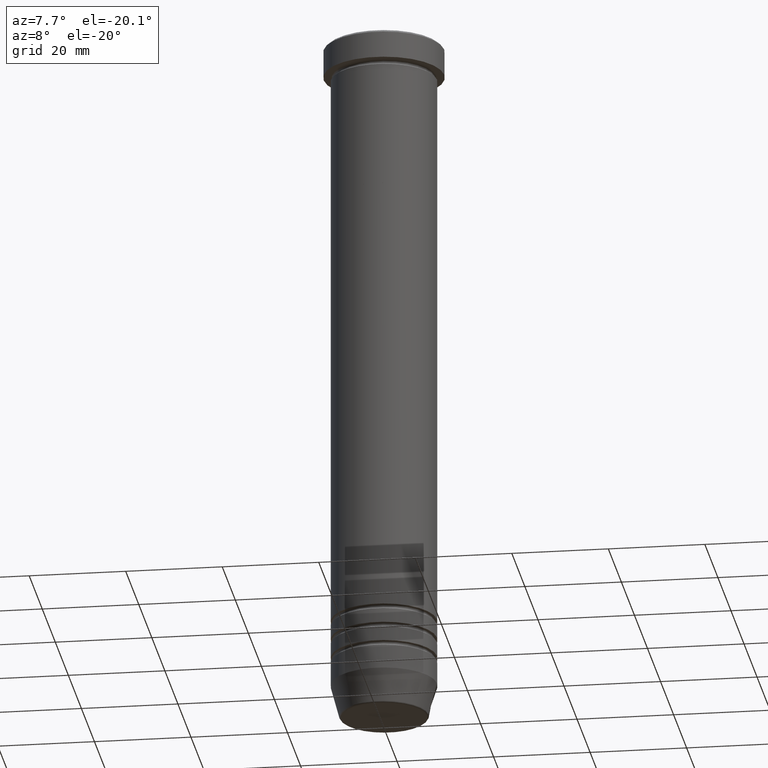
[diagram: clean part render]
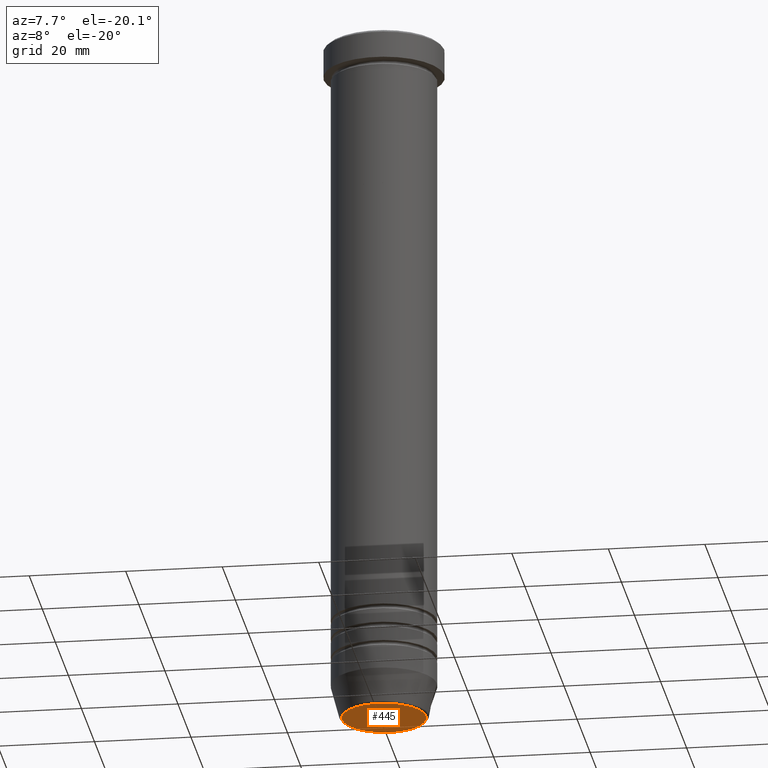
[diagram: same view with one face highlighted and labeled with its STEP entity id]
A machine part, auxiliary view. The second image highlights one B-rep face of the part: STEP entity #445.
In plain terms, the highlighted planar face has unit normal (0, -0, 1).
Its self-contained STEP definition (entity closure, byte-faithful):
#17 = CARTESIAN_POINT ( 'NONE',  ( 0.000000000000000000, 0.000000000000000000, -146.0000000000000284 ) ) ;
#77 = AXIS2_PLACEMENT_3D ( 'NONE', #515, #871, #696 ) ;
#92 = VERTEX_POINT ( 'NONE', #817 ) ;
#111 = DIRECTION ( 'NONE',  ( 0.000000000000000000, 0.000000000000000000, -1.000000000000000000 ) ) ;
#161 = PLANE ( 'NONE',  #77 ) ;
#184 = DIRECTION ( 'NONE',  ( 1.000000000000000000, 0.000000000000000000, 0.000000000000000000 ) ) ;
#196 = CARTESIAN_POINT ( 'NONE',  ( 0.000000000000000000, 0.000000000000000000, -146.0000000000000284 ) ) ;
#285 = CARTESIAN_POINT ( 'NONE',  ( 8.740692158992658278, 0.000000000000000000, -146.0000000000000284 ) ) ;
#315 = AXIS2_PLACEMENT_3D ( 'NONE', #196, #111, #184 ) ;
#347 = ORIENTED_EDGE ( 'NONE', *, *, #950, .T. ) ;
#445 = ADVANCED_FACE ( 'NONE', ( #775 ), #161, .F. ) ;
#448 = DIRECTION ( 'NONE',  ( 1.000000000000000000, 0.000000000000000000, 0.000000000000000000 ) ) ;
#515 = CARTESIAN_POINT ( 'NONE',  ( 0.000000000000000000, 1.059319481262460767E-14, -146.0000000000000284 ) ) ;
#696 = DIRECTION ( 'NONE',  ( 1.000000000000000000, 0.000000000000000000, 0.000000000000000000 ) ) ;
#726 = CIRCLE ( 'NONE', #823, 8.740692158992658278 ) ;
#749 = ORIENTED_EDGE ( 'NONE', *, *, #1001, .T. ) ;
#775 = FACE_OUTER_BOUND ( 'NONE', #855, .T. ) ;
#782 = CIRCLE ( 'NONE', #315, 8.740692158992658278 ) ;
#817 = CARTESIAN_POINT ( 'NONE',  ( -8.740692158992658278, 1.099999016768739653E-15, -146.0000000000000284 ) ) ;
#823 = AXIS2_PLACEMENT_3D ( 'NONE', #17, #1088, #448 ) ;
#855 = EDGE_LOOP ( 'NONE', ( #347, #749 ) ) ;
#871 = DIRECTION ( 'NONE',  ( 0.000000000000000000, -0.000000000000000000, 1.000000000000000000 ) ) ;
#936 = VERTEX_POINT ( 'NONE', #285 ) ;
#950 = EDGE_CURVE ( 'NONE', #936, #92, #782, .T. ) ;
#1001 = EDGE_CURVE ( 'NONE', #92, #936, #726, .T. ) ;
#1088 = DIRECTION ( 'NONE',  ( 0.000000000000000000, 0.000000000000000000, -1.000000000000000000 ) ) ;